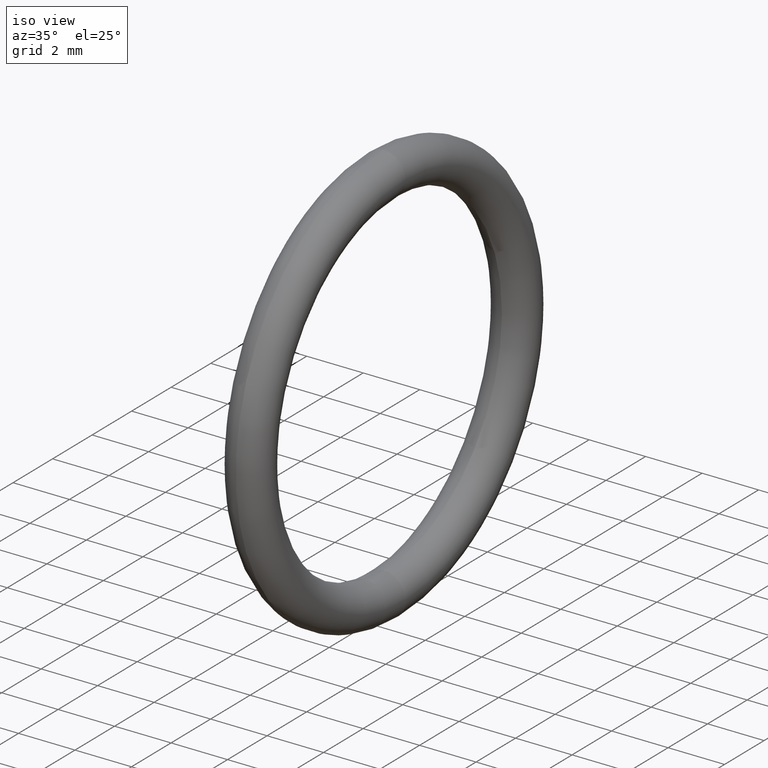
[diagram: clean part render]
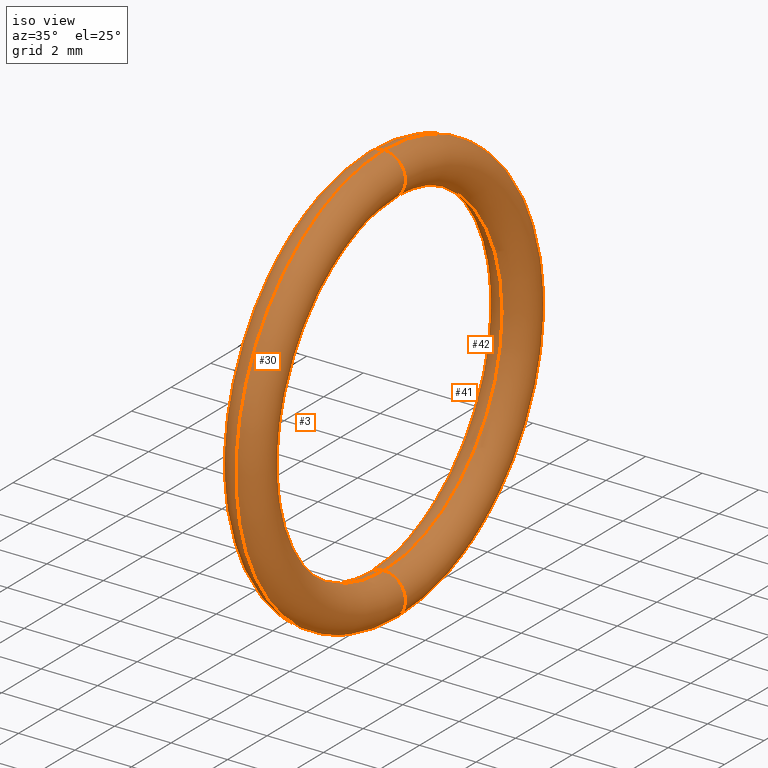
[diagram: same view with one multi-face feature highlighted, each face labeled with its STEP entity id]
A machine part, iso view. The highlighted faces form ONE feature: a constant-radius fillet chain: 4 tangent blend faces with common blend radius 0.762 mm. The faces share edges in the B-rep.
Their STEP definitions:
[1] entity #42 (Torus):
#22 = VERTEX_POINT ( 'NONE', #75 ) ;
#28 = VERTEX_POINT ( 'NONE', #104 ) ;
#32 = VERTEX_POINT ( 'NONE', #125 ) ;
#33 = VERTEX_POINT ( 'NONE', #124 ) ;
#35 = EDGE_CURVE ( 'NONE', #33, #28, #83, .T. ) ;
#36 = ORIENTED_EDGE ( 'NONE', *, *, #39, .T. ) ;
#37 = ORIENTED_EDGE ( 'NONE', *, *, #35, .T. ) ;
#39 = EDGE_CURVE ( 'NONE', #22, #33, #90, .T. ) ;
#42 = ADVANCED_FACE ( 'NONE', ( #63 ), #62, .T. ) ;
#43 = ORIENTED_EDGE ( 'NONE', *, *, #50, .F. ) ;
#46 = ORIENTED_EDGE ( 'NONE', *, *, #47, .F. ) ;
#47 = EDGE_CURVE ( 'NONE', #22, #32, #105, .T. ) ;
#49 = EDGE_LOOP ( 'NONE', ( #43, #46, #36, #37 ) ) ;
#50 = EDGE_CURVE ( 'NONE', #32, #28, #97, .T. ) ;
#61 = CARTESIAN_POINT ( 'NONE',  ( 0.1000000000000000500, 0.0000000000000000000, 0.0000000000000000000 ) ) ;
#62 = TOROIDAL_SURFACE ( 'NONE', #108, 0.2649999999999999600, 0.03000000000000000900 ) ;
#63 = FACE_OUTER_BOUND ( 'NONE', #49, .T. ) ;
#75 = CARTESIAN_POINT ( 'NONE',  ( 0.1000000000000000500, 0.0000000000000000000, 0.2349999999999999600 ) ) ;
#79 = DIRECTION ( 'NONE',  ( 0.0000000000000000000, -1.224646799147353500E-016, 1.000000000000000000 ) ) ;
#80 = DIRECTION ( 'NONE',  ( 0.0000000000000000000, 1.000000000000000000, 1.224646799147353200E-016 ) ) ;
#81 = CARTESIAN_POINT ( 'NONE',  ( 0.1000000000000000500, 3.245314017740485600E-017, -0.2649999999999999600 ) ) ;
#82 = AXIS2_PLACEMENT_3D ( 'NONE', #81, #80, #79 ) ;
#83 = CIRCLE ( 'NONE', #82, 0.03000000000000002300 ) ;
#84 = CARTESIAN_POINT ( 'NONE',  ( 0.1000000000000000500, 0.0000000000000000000, 0.0000000000000000000 ) ) ;
#88 = DIRECTION ( 'NONE',  ( 0.0000000000000000000, 0.0000000000000000000, 1.000000000000000000 ) ) ;
#89 = AXIS2_PLACEMENT_3D ( 'NONE', #84, #129, #128 ) ;
#90 = CIRCLE ( 'NONE', #89, 0.2349999999999999600 ) ;
#93 = DIRECTION ( 'NONE',  ( 0.0000000000000000000, 0.0000000000000000000, -1.000000000000000000 ) ) ;
#94 = DIRECTION ( 'NONE',  ( 0.0000000000000000000, -1.000000000000000000, 0.0000000000000000000 ) ) ;
#95 = CARTESIAN_POINT ( 'NONE',  ( 0.1000000000000000500, 0.0000000000000000000, 0.2649999999999999600 ) ) ;
#96 = AXIS2_PLACEMENT_3D ( 'NONE', #95, #94, #93 ) ;
#97 = CIRCLE ( 'NONE', #119, 0.2949999999999999800 ) ;
#104 = CARTESIAN_POINT ( 'NONE',  ( 0.1000000000000000500, 3.612708057484692000E-017, -0.2949999999999999800 ) ) ;
#105 = CIRCLE ( 'NONE', #96, 0.03000000000000002300 ) ;
#106 = DIRECTION ( 'NONE',  ( 0.0000000000000000000, 0.0000000000000000000, 1.000000000000000000 ) ) ;
#107 = DIRECTION ( 'NONE',  ( -1.000000000000000000, 0.0000000000000000000, 0.0000000000000000000 ) ) ;
#108 = AXIS2_PLACEMENT_3D ( 'NONE', #61, #107, #106 ) ;
#117 = DIRECTION ( 'NONE',  ( -1.000000000000000000, 0.0000000000000000000, 0.0000000000000000000 ) ) ;
#118 = CARTESIAN_POINT ( 'NONE',  ( 0.1000000000000000500, 0.0000000000000000000, 0.0000000000000000000 ) ) ;
#119 = AXIS2_PLACEMENT_3D ( 'NONE', #118, #117, #88 ) ;
#124 = CARTESIAN_POINT ( 'NONE',  ( 0.1000000000000000500, 2.877919977996279200E-017, -0.2349999999999999600 ) ) ;
#125 = CARTESIAN_POINT ( 'NONE',  ( 0.1000000000000000500, 0.0000000000000000000, 0.2949999999999999800 ) ) ;
#128 = DIRECTION ( 'NONE',  ( 0.0000000000000000000, 0.0000000000000000000, 1.000000000000000000 ) ) ;
#129 = DIRECTION ( 'NONE',  ( -1.000000000000000000, 0.0000000000000000000, 0.0000000000000000000 ) ) ;
[2] entity #3 (Torus):
#1 = ORIENTED_EDGE ( 'NONE', *, *, #31, .T. ) ;
#2 = ORIENTED_EDGE ( 'NONE', *, *, #24, .F. ) ;
#3 = ADVANCED_FACE ( 'NONE', ( #55 ), #56, .T. ) ;
#4 = EDGE_LOOP ( 'NONE', ( #2, #34, #1, #7 ) ) ;
#7 = ORIENTED_EDGE ( 'NONE', *, *, #47, .T. ) ;
#22 = VERTEX_POINT ( 'NONE', #75 ) ;
#24 = EDGE_CURVE ( 'NONE', #28, #32, #135, .T. ) ;
#28 = VERTEX_POINT ( 'NONE', #104 ) ;
#31 = EDGE_CURVE ( 'NONE', #33, #22, #78, .T. ) ;
#32 = VERTEX_POINT ( 'NONE', #125 ) ;
#33 = VERTEX_POINT ( 'NONE', #124 ) ;
#34 = ORIENTED_EDGE ( 'NONE', *, *, #35, .F. ) ;
#35 = EDGE_CURVE ( 'NONE', #33, #28, #83, .T. ) ;
#47 = EDGE_CURVE ( 'NONE', #22, #32, #105, .T. ) ;
#55 = FACE_OUTER_BOUND ( 'NONE', #4, .T. ) ;
#56 = TOROIDAL_SURFACE ( 'NONE', #57, 0.2649999999999999600, 0.03000000000000000900 ) ;
#57 = AXIS2_PLACEMENT_3D ( 'NONE', #60, #58, #59 ) ;
#58 = DIRECTION ( 'NONE',  ( -1.000000000000000000, 0.0000000000000000000, 0.0000000000000000000 ) ) ;
#59 = DIRECTION ( 'NONE',  ( 0.0000000000000000000, 0.0000000000000000000, 1.000000000000000000 ) ) ;
#60 = CARTESIAN_POINT ( 'NONE',  ( 0.1000000000000000500, 0.0000000000000000000, 0.0000000000000000000 ) ) ;
#67 = AXIS2_PLACEMENT_3D ( 'NONE', #92, #91, #110 ) ;
#71 = DIRECTION ( 'NONE',  ( 0.0000000000000000000, 0.0000000000000000000, 1.000000000000000000 ) ) ;
#72 = DIRECTION ( 'NONE',  ( -1.000000000000000000, 0.0000000000000000000, 0.0000000000000000000 ) ) ;
#73 = CARTESIAN_POINT ( 'NONE',  ( 0.1000000000000000500, 0.0000000000000000000, 0.0000000000000000000 ) ) ;
#74 = AXIS2_PLACEMENT_3D ( 'NONE', #73, #72, #71 ) ;
#75 = CARTESIAN_POINT ( 'NONE',  ( 0.1000000000000000500, 0.0000000000000000000, 0.2349999999999999600 ) ) ;
#78 = CIRCLE ( 'NONE', #74, 0.2349999999999999600 ) ;
#79 = DIRECTION ( 'NONE',  ( 0.0000000000000000000, -1.224646799147353500E-016, 1.000000000000000000 ) ) ;
#80 = DIRECTION ( 'NONE',  ( 0.0000000000000000000, 1.000000000000000000, 1.224646799147353200E-016 ) ) ;
#81 = CARTESIAN_POINT ( 'NONE',  ( 0.1000000000000000500, 3.245314017740485600E-017, -0.2649999999999999600 ) ) ;
#82 = AXIS2_PLACEMENT_3D ( 'NONE', #81, #80, #79 ) ;
#83 = CIRCLE ( 'NONE', #82, 0.03000000000000002300 ) ;
#91 = DIRECTION ( 'NONE',  ( -1.000000000000000000, 0.0000000000000000000, 0.0000000000000000000 ) ) ;
#92 = CARTESIAN_POINT ( 'NONE',  ( 0.1000000000000000500, 0.0000000000000000000, 0.0000000000000000000 ) ) ;
#93 = DIRECTION ( 'NONE',  ( 0.0000000000000000000, 0.0000000000000000000, -1.000000000000000000 ) ) ;
#94 = DIRECTION ( 'NONE',  ( 0.0000000000000000000, -1.000000000000000000, 0.0000000000000000000 ) ) ;
#95 = CARTESIAN_POINT ( 'NONE',  ( 0.1000000000000000500, 0.0000000000000000000, 0.2649999999999999600 ) ) ;
#96 = AXIS2_PLACEMENT_3D ( 'NONE', #95, #94, #93 ) ;
#104 = CARTESIAN_POINT ( 'NONE',  ( 0.1000000000000000500, 3.612708057484692000E-017, -0.2949999999999999800 ) ) ;
#105 = CIRCLE ( 'NONE', #96, 0.03000000000000002300 ) ;
#110 = DIRECTION ( 'NONE',  ( 0.0000000000000000000, 0.0000000000000000000, 1.000000000000000000 ) ) ;
#124 = CARTESIAN_POINT ( 'NONE',  ( 0.1000000000000000500, 2.877919977996279200E-017, -0.2349999999999999600 ) ) ;
#125 = CARTESIAN_POINT ( 'NONE',  ( 0.1000000000000000500, 0.0000000000000000000, 0.2949999999999999800 ) ) ;
#135 = CIRCLE ( 'NONE', #67, 0.2949999999999999800 ) ;
[3] entity #30 (Torus):
#6 = CARTESIAN_POINT ( 'NONE',  ( 0.1000000000000000500, 0.0000000000000000000, 0.2649999999999999600 ) ) ;
#9 = DIRECTION ( 'NONE',  ( 0.0000000000000000000, 0.0000000000000000000, -1.000000000000000000 ) ) ;
#11 = DIRECTION ( 'NONE',  ( 0.0000000000000000000, -1.000000000000000000, 0.0000000000000000000 ) ) ;
#21 = EDGE_CURVE ( 'NONE', #32, #22, #54, .T. ) ;
#22 = VERTEX_POINT ( 'NONE', #75 ) ;
#23 = ORIENTED_EDGE ( 'NONE', *, *, #24, .T. ) ;
#24 = EDGE_CURVE ( 'NONE', #28, #32, #135, .T. ) ;
#25 = ORIENTED_EDGE ( 'NONE', *, *, #29, .F. ) ;
#26 = EDGE_LOOP ( 'NONE', ( #25, #23, #52, #51 ) ) ;
#28 = VERTEX_POINT ( 'NONE', #104 ) ;
#29 = EDGE_CURVE ( 'NONE', #28, #33, #115, .T. ) ;
#30 = ADVANCED_FACE ( 'NONE', ( #116 ), #134, .T. ) ;
#31 = EDGE_CURVE ( 'NONE', #33, #22, #78, .T. ) ;
#32 = VERTEX_POINT ( 'NONE', #125 ) ;
#33 = VERTEX_POINT ( 'NONE', #124 ) ;
#51 = ORIENTED_EDGE ( 'NONE', *, *, #31, .F. ) ;
#52 = ORIENTED_EDGE ( 'NONE', *, *, #21, .T. ) ;
#53 = AXIS2_PLACEMENT_3D ( 'NONE', #6, #11, #9 ) ;
#54 = CIRCLE ( 'NONE', #53, 0.03000000000000002300 ) ;
#65 = DIRECTION ( 'NONE',  ( 0.0000000000000000000, -1.224646799147353500E-016, 1.000000000000000000 ) ) ;
#66 = DIRECTION ( 'NONE',  ( 0.0000000000000000000, 1.000000000000000000, 1.224646799147353200E-016 ) ) ;
#67 = AXIS2_PLACEMENT_3D ( 'NONE', #92, #91, #110 ) ;
#71 = DIRECTION ( 'NONE',  ( 0.0000000000000000000, 0.0000000000000000000, 1.000000000000000000 ) ) ;
#72 = DIRECTION ( 'NONE',  ( -1.000000000000000000, 0.0000000000000000000, 0.0000000000000000000 ) ) ;
#73 = CARTESIAN_POINT ( 'NONE',  ( 0.1000000000000000500, 0.0000000000000000000, 0.0000000000000000000 ) ) ;
#74 = AXIS2_PLACEMENT_3D ( 'NONE', #73, #72, #71 ) ;
#75 = CARTESIAN_POINT ( 'NONE',  ( 0.1000000000000000500, 0.0000000000000000000, 0.2349999999999999600 ) ) ;
#78 = CIRCLE ( 'NONE', #74, 0.2349999999999999600 ) ;
#91 = DIRECTION ( 'NONE',  ( -1.000000000000000000, 0.0000000000000000000, 0.0000000000000000000 ) ) ;
#92 = CARTESIAN_POINT ( 'NONE',  ( 0.1000000000000000500, 0.0000000000000000000, 0.0000000000000000000 ) ) ;
#104 = CARTESIAN_POINT ( 'NONE',  ( 0.1000000000000000500, 3.612708057484692000E-017, -0.2949999999999999800 ) ) ;
#109 = CARTESIAN_POINT ( 'NONE',  ( 0.1000000000000000500, 3.245314017740485600E-017, -0.2649999999999999600 ) ) ;
#110 = DIRECTION ( 'NONE',  ( 0.0000000000000000000, 0.0000000000000000000, 1.000000000000000000 ) ) ;
#111 = DIRECTION ( 'NONE',  ( 0.0000000000000000000, 0.0000000000000000000, 1.000000000000000000 ) ) ;
#112 = DIRECTION ( 'NONE',  ( -1.000000000000000000, 0.0000000000000000000, 0.0000000000000000000 ) ) ;
#113 = CARTESIAN_POINT ( 'NONE',  ( 0.1000000000000000500, 0.0000000000000000000, 0.0000000000000000000 ) ) ;
#114 = AXIS2_PLACEMENT_3D ( 'NONE', #113, #112, #111 ) ;
#115 = CIRCLE ( 'NONE', #123, 0.03000000000000002300 ) ;
#116 = FACE_OUTER_BOUND ( 'NONE', #26, .T. ) ;
#123 = AXIS2_PLACEMENT_3D ( 'NONE', #109, #66, #65 ) ;
#124 = CARTESIAN_POINT ( 'NONE',  ( 0.1000000000000000500, 2.877919977996279200E-017, -0.2349999999999999600 ) ) ;
#125 = CARTESIAN_POINT ( 'NONE',  ( 0.1000000000000000500, 0.0000000000000000000, 0.2949999999999999800 ) ) ;
#134 = TOROIDAL_SURFACE ( 'NONE', #114, 0.2649999999999999600, 0.03000000000000000900 ) ;
#135 = CIRCLE ( 'NONE', #67, 0.2949999999999999800 ) ;
[4] entity #41 (Torus):
#6 = CARTESIAN_POINT ( 'NONE',  ( 0.1000000000000000500, 0.0000000000000000000, 0.2649999999999999600 ) ) ;
#9 = DIRECTION ( 'NONE',  ( 0.0000000000000000000, 0.0000000000000000000, -1.000000000000000000 ) ) ;
#11 = DIRECTION ( 'NONE',  ( 0.0000000000000000000, -1.000000000000000000, 0.0000000000000000000 ) ) ;
#21 = EDGE_CURVE ( 'NONE', #32, #22, #54, .T. ) ;
#22 = VERTEX_POINT ( 'NONE', #75 ) ;
#28 = VERTEX_POINT ( 'NONE', #104 ) ;
#29 = EDGE_CURVE ( 'NONE', #28, #33, #115, .T. ) ;
#32 = VERTEX_POINT ( 'NONE', #125 ) ;
#33 = VERTEX_POINT ( 'NONE', #124 ) ;
#38 = ORIENTED_EDGE ( 'NONE', *, *, #21, .F. ) ;
#39 = EDGE_CURVE ( 'NONE', #22, #33, #90, .T. ) ;
#40 = ORIENTED_EDGE ( 'NONE', *, *, #39, .F. ) ;
#41 = ADVANCED_FACE ( 'NONE', ( #127 ), #70, .T. ) ;
#44 = ORIENTED_EDGE ( 'NONE', *, *, #29, .T. ) ;
#45 = EDGE_LOOP ( 'NONE', ( #38, #48, #44, #40 ) ) ;
#48 = ORIENTED_EDGE ( 'NONE', *, *, #50, .T. ) ;
#50 = EDGE_CURVE ( 'NONE', #32, #28, #97, .T. ) ;
#53 = AXIS2_PLACEMENT_3D ( 'NONE', #6, #11, #9 ) ;
#54 = CIRCLE ( 'NONE', #53, 0.03000000000000002300 ) ;
#64 = DIRECTION ( 'NONE',  ( 0.0000000000000000000, 0.0000000000000000000, 1.000000000000000000 ) ) ;
#65 = DIRECTION ( 'NONE',  ( 0.0000000000000000000, -1.224646799147353500E-016, 1.000000000000000000 ) ) ;
#66 = DIRECTION ( 'NONE',  ( 0.0000000000000000000, 1.000000000000000000, 1.224646799147353200E-016 ) ) ;
#68 = DIRECTION ( 'NONE',  ( -1.000000000000000000, 0.0000000000000000000, 0.0000000000000000000 ) ) ;
#69 = AXIS2_PLACEMENT_3D ( 'NONE', #126, #68, #64 ) ;
#70 = TOROIDAL_SURFACE ( 'NONE', #69, 0.2649999999999999600, 0.03000000000000000900 ) ;
#75 = CARTESIAN_POINT ( 'NONE',  ( 0.1000000000000000500, 0.0000000000000000000, 0.2349999999999999600 ) ) ;
#84 = CARTESIAN_POINT ( 'NONE',  ( 0.1000000000000000500, 0.0000000000000000000, 0.0000000000000000000 ) ) ;
#88 = DIRECTION ( 'NONE',  ( 0.0000000000000000000, 0.0000000000000000000, 1.000000000000000000 ) ) ;
#89 = AXIS2_PLACEMENT_3D ( 'NONE', #84, #129, #128 ) ;
#90 = CIRCLE ( 'NONE', #89, 0.2349999999999999600 ) ;
#97 = CIRCLE ( 'NONE', #119, 0.2949999999999999800 ) ;
#104 = CARTESIAN_POINT ( 'NONE',  ( 0.1000000000000000500, 3.612708057484692000E-017, -0.2949999999999999800 ) ) ;
#109 = CARTESIAN_POINT ( 'NONE',  ( 0.1000000000000000500, 3.245314017740485600E-017, -0.2649999999999999600 ) ) ;
#115 = CIRCLE ( 'NONE', #123, 0.03000000000000002300 ) ;
#117 = DIRECTION ( 'NONE',  ( -1.000000000000000000, 0.0000000000000000000, 0.0000000000000000000 ) ) ;
#118 = CARTESIAN_POINT ( 'NONE',  ( 0.1000000000000000500, 0.0000000000000000000, 0.0000000000000000000 ) ) ;
#119 = AXIS2_PLACEMENT_3D ( 'NONE', #118, #117, #88 ) ;
#123 = AXIS2_PLACEMENT_3D ( 'NONE', #109, #66, #65 ) ;
#124 = CARTESIAN_POINT ( 'NONE',  ( 0.1000000000000000500, 2.877919977996279200E-017, -0.2349999999999999600 ) ) ;
#125 = CARTESIAN_POINT ( 'NONE',  ( 0.1000000000000000500, 0.0000000000000000000, 0.2949999999999999800 ) ) ;
#126 = CARTESIAN_POINT ( 'NONE',  ( 0.1000000000000000500, 0.0000000000000000000, 0.0000000000000000000 ) ) ;
#127 = FACE_OUTER_BOUND ( 'NONE', #45, .T. ) ;
#128 = DIRECTION ( 'NONE',  ( 0.0000000000000000000, 0.0000000000000000000, 1.000000000000000000 ) ) ;
#129 = DIRECTION ( 'NONE',  ( -1.000000000000000000, 0.0000000000000000000, 0.0000000000000000000 ) ) ;